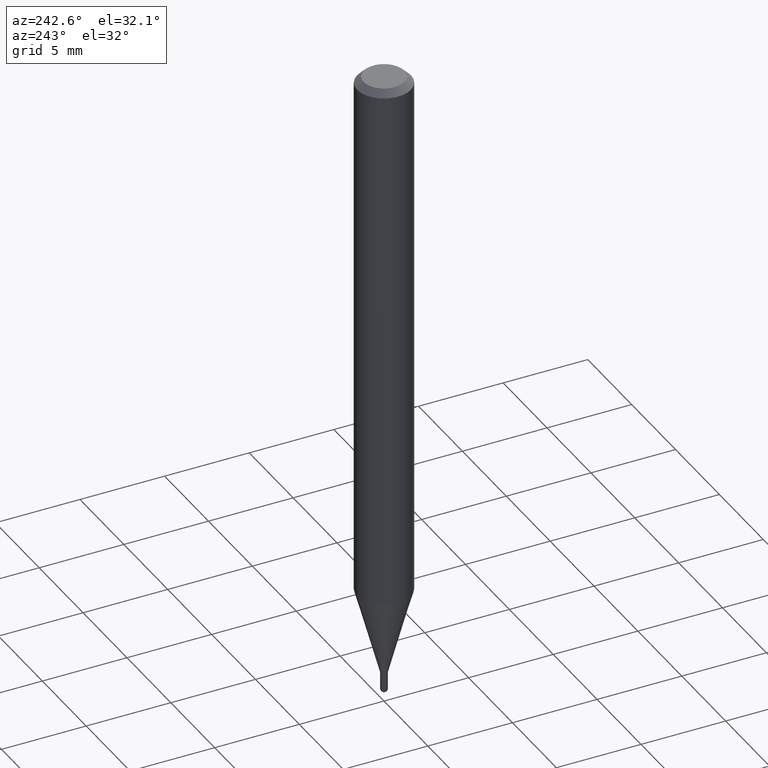
[diagram: clean part render]
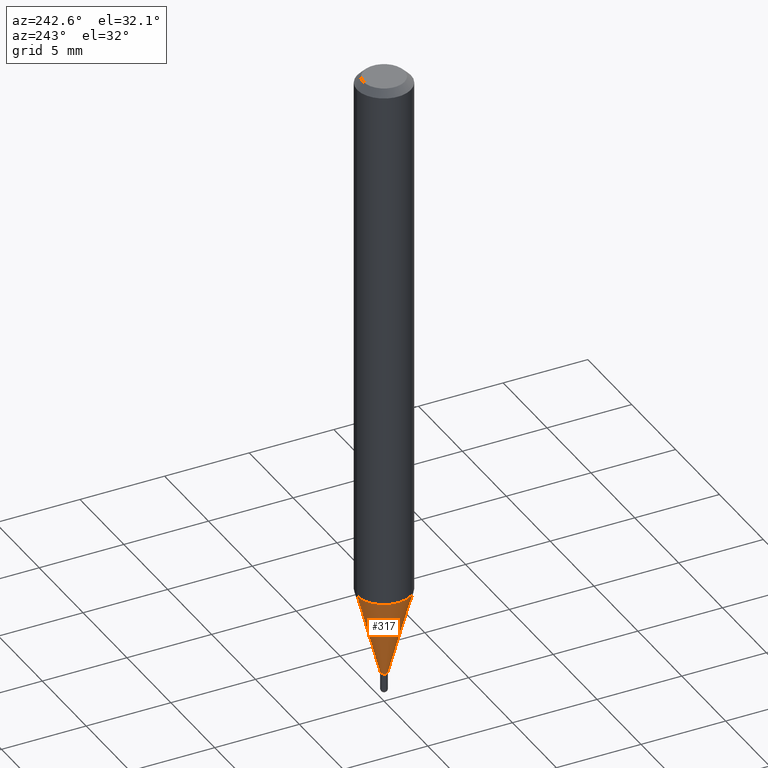
[diagram: same view with one face highlighted and labeled with its STEP entity id]
A machine part, auxiliary view. The second image highlights one B-rep face of the part: STEP entity #317.
In plain terms, the highlighted conical surface has half-angle 15 deg.
Its self-contained STEP definition (entity closure, byte-faithful):
#17 = VERTEX_POINT ( 'NONE', #329 ) ;
#38 = DIRECTION ( 'NONE',  ( -2.445475665972653813E-29, 3.491471515236986079E-15, 1.000000000000000000 ) ) ;
#74 = CARTESIAN_POINT ( 'NONE',  ( 3.550830666992293868E-29, -5.069616640124104724E-15, -1.452000000000000179 ) ) ;
#80 = LINE ( 'NONE', #234, #495 ) ;
#86 = EDGE_CURVE ( 'NONE', #109, #17, #189, .T. ) ;
#92 = VERTEX_POINT ( 'NONE', #219 ) ;
#94 = ORIENTED_EDGE ( 'NONE', *, *, #480, .T. ) ;
#95 = CONICAL_SURFACE ( 'NONE', #216, 0.007999999999999923839, 0.2617993877991576235 ) ;
#109 = VERTEX_POINT ( 'NONE', #504 ) ;
#117 = CARTESIAN_POINT ( 'NONE',  ( 2.504663143554681771E-16, 0.007999999999994853242, -1.452000000000000179 ) ) ;
#122 = FACE_OUTER_BOUND ( 'NONE', #409, .T. ) ;
#138 = ORIENTED_EDGE ( 'NONE', *, *, #445, .F. ) ;
#160 = CARTESIAN_POINT ( 'NONE',  ( 3.053428817834770725E-29, -4.359462614825733098E-15, -1.248603230987502810 ) ) ;
#189 = LINE ( 'NONE', #308, #310 ) ;
#216 = AXIS2_PLACEMENT_3D ( 'NONE', #74, #38, #389 ) ;
#219 = CARTESIAN_POINT ( 'NONE',  ( 4.440892098500929873E-16, 0.06249999999999562850, -1.248603230987503032 ) ) ;
#234 = CARTESIAN_POINT ( 'NONE',  ( 5.684341886084298478E-17, 0.007999999999994854977, -1.452000000000000179 ) ) ;
#252 = DIRECTION ( 'NONE',  ( -2.445475665972653813E-29, 3.491471515236986079E-15, 1.000000000000000000 ) ) ;
#255 = CIRCLE ( 'NONE', #460, 0.06250000000000000000 ) ;
#257 = ORIENTED_EDGE ( 'NONE', *, *, #434, .F. ) ;
#259 = ORIENTED_EDGE ( 'NONE', *, *, #86, .T. ) ;
#308 = CARTESIAN_POINT ( 'NONE',  ( -5.586370142145409457E-17, -0.008000000000004994435, -1.452000000000000179 ) ) ;
#309 = DIRECTION ( 'NONE',  ( -2.445475665972653813E-29, 3.491471515236986079E-15, 1.000000000000000000 ) ) ;
#310 = VECTOR ( 'NONE', #468, 39.37007874015748143 ) ;
#316 = DIRECTION ( 'NONE',  ( -6.982962677686265922E-15, -1.000000000000000000, 4.370956789862821150E-15 ) ) ;
#317 = ADVANCED_FACE ( 'NONE', ( #122 ), #95, .T. ) ;
#327 = AXIS2_PLACEMENT_3D ( 'NONE', #440, #252, #433 ) ;
#329 = CARTESIAN_POINT ( 'NONE',  ( -4.364351673553611504E-16, -0.06250000000000437150, -1.248603230987502588 ) ) ;
#362 = VERTEX_POINT ( 'NONE', #117 ) ;
#384 = CIRCLE ( 'NONE', #327, 0.007999999999999923839 ) ;
#389 = DIRECTION ( 'NONE',  ( -6.982962677686267499E-15, -1.000000000000000000, 0.000000000000000000 ) ) ;
#409 = EDGE_LOOP ( 'NONE', ( #257, #94, #259, #138 ) ) ;
#433 = DIRECTION ( 'NONE',  ( -6.982962677686267499E-15, -1.000000000000000000, 0.000000000000000000 ) ) ;
#434 = EDGE_CURVE ( 'NONE', #362, #92, #80, .T. ) ;
#440 = CARTESIAN_POINT ( 'NONE',  ( 3.550830666992293868E-29, -5.069616640124104724E-15, -1.452000000000000179 ) ) ;
#445 = EDGE_CURVE ( 'NONE', #92, #17, #255, .T. ) ;
#460 = AXIS2_PLACEMENT_3D ( 'NONE', #160, #309, #316 ) ;
#468 = DIRECTION ( 'NONE',  ( -1.807323732225379838E-15, -0.2588190451025252914, 0.9659258262890670910 ) ) ;
#477 = DIRECTION ( 'NONE',  ( 1.839019923739650408E-15, 0.2588190451025320082, 0.9659258262890650926 ) ) ;
#480 = EDGE_CURVE ( 'NONE', #362, #109, #384, .T. ) ;
#495 = VECTOR ( 'NONE', #477, 39.37007874015748854 ) ;
#504 = CARTESIAN_POINT ( 'NONE',  ( -5.586370142145409457E-17, -0.008000000000004994435, -1.452000000000000179 ) ) ;